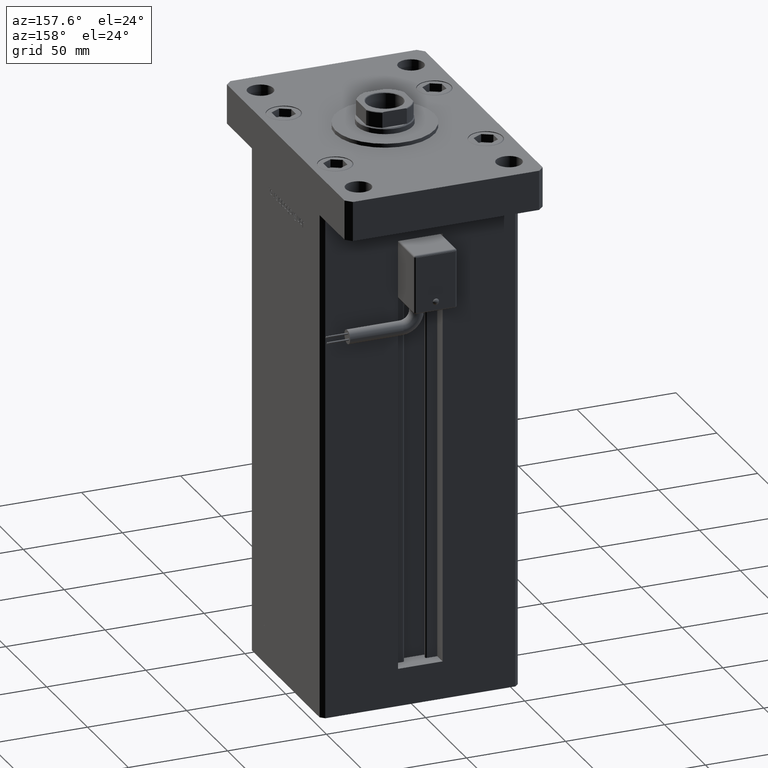
[diagram: clean part render]
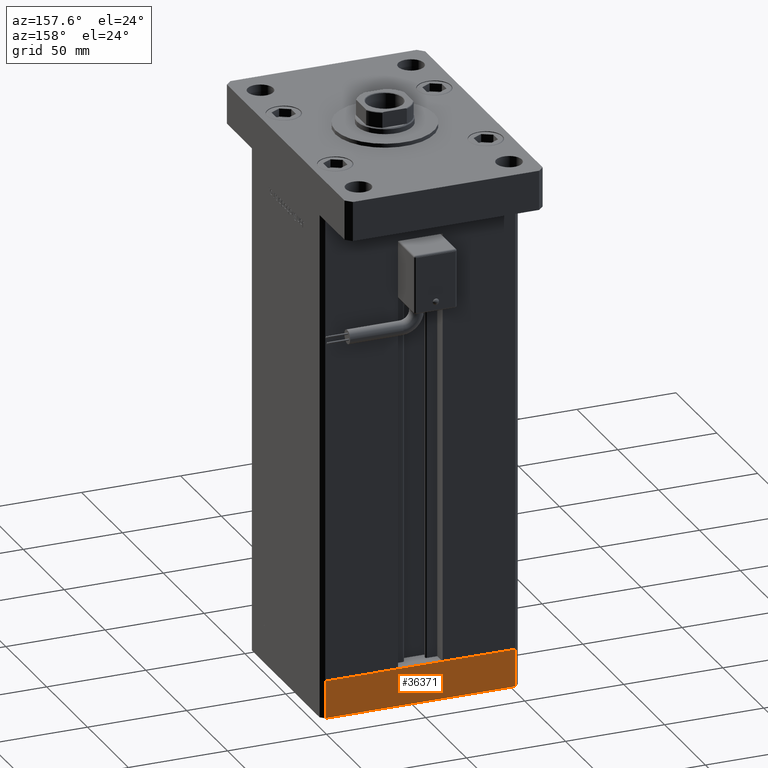
[diagram: same view with one face highlighted and labeled with its STEP entity id]
A machine part, auxiliary view. The second image highlights one B-rep face of the part: STEP entity #36371.
In plain terms, the highlighted planar face has unit normal (0, 1, 0).
Its self-contained STEP definition (entity closure, byte-faithful):
#218 = PLANE ( 'NONE',  #36924 ) ;
#497 = FACE_OUTER_BOUND ( 'NONE', #16379, .T. ) ;
#2301 = CARTESIAN_POINT ( 'NONE',  ( -48.00000000000000711, 43.49999999999996447, 0.000000000000000000 ) ) ;
#3686 = ORIENTED_EDGE ( 'NONE', *, *, #6678, .T. ) ;
#5393 = LINE ( 'NONE', #23218, #11527 ) ;
#6469 = LINE ( 'NONE', #27747, #17413 ) ;
#6678 = EDGE_CURVE ( 'NONE', #26240, #11730, #6469, .T. ) ;
#8366 = LINE ( 'NONE', #56420, #45143 ) ;
#9970 = CARTESIAN_POINT ( 'NONE',  ( 47.99999999999990763, 43.50000000000000000, -19.00000000000000000 ) ) ;
#10260 = LINE ( 'NONE', #14865, #31260 ) ;
#11332 = DIRECTION ( 'NONE',  ( 0.000000000000000000, 0.000000000000000000, 1.000000000000000000 ) ) ;
#11527 = VECTOR ( 'NONE', #31562, 1000.000000000000000 ) ;
#11549 = CARTESIAN_POINT ( 'NONE',  ( 47.99999999999990763, 43.50000000000000000, 0.000000000000000000 ) ) ;
#11730 = VERTEX_POINT ( 'NONE', #51740 ) ;
#14865 = CARTESIAN_POINT ( 'NONE',  ( 47.99999999999990763, 43.50000000000000000, 0.000000000000000000 ) ) ;
#16379 = EDGE_LOOP ( 'NONE', ( #49783, #37683, #3686, #34568 ) ) ;
#17413 = VECTOR ( 'NONE', #41539, 1000.000000000000000 ) ;
#23218 = CARTESIAN_POINT ( 'NONE',  ( 47.99999999999990763, 43.50000000000000000, -19.00000000000000000 ) ) ;
#26240 = VERTEX_POINT ( 'NONE', #35894 ) ;
#26389 = DIRECTION ( 'NONE',  ( -1.000000000000000000, -3.614007241618350743E-16, 0.000000000000000000 ) ) ;
#27515 = DIRECTION ( 'NONE',  ( -3.614007241618350743E-16, 1.000000000000000000, 0.000000000000000000 ) ) ;
#27747 = CARTESIAN_POINT ( 'NONE',  ( 47.99999999999990763, 43.50000000000000000, -19.00000000000000000 ) ) ;
#28931 = EDGE_CURVE ( 'NONE', #36037, #42145, #10260, .T. ) ;
#31260 = VECTOR ( 'NONE', #37003, 1000.000000000000000 ) ;
#31562 = DIRECTION ( 'NONE',  ( 0.000000000000000000, 0.000000000000000000, 1.000000000000000000 ) ) ;
#32181 = EDGE_CURVE ( 'NONE', #11730, #42145, #8366, .T. ) ;
#34568 = ORIENTED_EDGE ( 'NONE', *, *, #32181, .T. ) ;
#35894 = CARTESIAN_POINT ( 'NONE',  ( 47.99999999999990763, 43.50000000000000000, -19.00000000000000000 ) ) ;
#36037 = VERTEX_POINT ( 'NONE', #11549 ) ;
#36371 = ADVANCED_FACE ( 'NONE', ( #497 ), #218, .T. ) ;
#36924 = AXIS2_PLACEMENT_3D ( 'NONE', #9970, #27515, #26389 ) ;
#37003 = DIRECTION ( 'NONE',  ( -1.000000000000000000, -3.614007241618350743E-16, 0.000000000000000000 ) ) ;
#37683 = ORIENTED_EDGE ( 'NONE', *, *, #54877, .F. ) ;
#41539 = DIRECTION ( 'NONE',  ( -1.000000000000000000, -3.614007241618350743E-16, 0.000000000000000000 ) ) ;
#42145 = VERTEX_POINT ( 'NONE', #2301 ) ;
#45143 = VECTOR ( 'NONE', #11332, 1000.000000000000000 ) ;
#49783 = ORIENTED_EDGE ( 'NONE', *, *, #28931, .F. ) ;
#51740 = CARTESIAN_POINT ( 'NONE',  ( -48.00000000000000711, 43.49999999999996447, -19.00000000000000000 ) ) ;
#54877 = EDGE_CURVE ( 'NONE', #26240, #36037, #5393, .T. ) ;
#56420 = CARTESIAN_POINT ( 'NONE',  ( -48.00000000000000711, 43.49999999999996447, -19.00000000000000000 ) ) ;